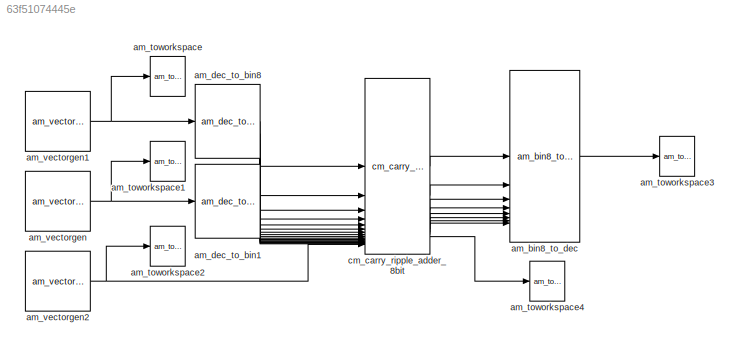
MODEL slx_63f51074445e
KIND model
CONFIG AbsTol = auto
CONFIG EnableMultiTasking = off
CONFIG FixedStep = auto
CONFIG MaxStep = auto
CONFIG MinStep = auto
CONFIG RelTol = 1e-3
CONFIG SampleTimeConstraint = Unconstrained
CONFIG SolverName = VariableStepAuto
CONFIG StartTime = 0.0
CONFIG StopTime = 10.0
BLOCK [Reference] am_bin8_to_dec  REF=NSA_DEVS_DIGITALI3E_CONVERTER/am_bin8_to_dec
  SourceBlock = NSA_DEVS_DIGITALI3E_CONVERTER/am_bin8_to_dec
BLOCK [Reference] am_dec_to_bin1  REF=NSA_DEVS_DIGITALI3E_CONVERTER/am_dec_to_bin8
  SourceBlock = NSA_DEVS_DIGITALI3E_CONVERTER/am_dec_to_bin8
BLOCK [Reference] am_dec_to_bin8  REF=NSA_DEVS_DIGITALI3E_CONVERTER/am_dec_to_bin8
  SourceBlock = NSA_DEVS_DIGITALI3E_CONVERTER/am_dec_to_bin8
BLOCK [Reference] am_toworkspace  REF=NSA_DEVS_SINKS/am_toworkspace
  SourceBlock = NSA_DEVS_SINKS/am_toworkspace
  SourceProductName = Sinks
  SourceType = ToWorkspace
BLOCK [Reference] am_toworkspace1  REF=NSA_DEVS_SINKS/am_toworkspace
  SourceBlock = NSA_DEVS_SINKS/am_toworkspace
  SourceProductName = Sinks
  SourceType = ToWorkspace
BLOCK [Reference] am_toworkspace2  REF=NSA_DEVS_SINKS/am_toworkspace
  SourceBlock = NSA_DEVS_SINKS/am_toworkspace
  SourceProductName = Sinks
  SourceType = ToWorkspace
BLOCK [Reference] am_toworkspace3  REF=NSA_DEVS_SINKS/am_toworkspace
  SourceBlock = NSA_DEVS_SINKS/am_toworkspace
  SourceProductName = Sinks
  SourceType = ToWorkspace
BLOCK [Reference] am_toworkspace4  REF=NSA_DEVS_SINKS/am_toworkspace
  SourceBlock = NSA_DEVS_SINKS/am_toworkspace
  SourceProductName = Sinks
  SourceType = ToWorkspace
BLOCK [Reference] am_vectorgen  REF=NSA_DEVS_SOURCES/am_vectorgen
  SourceBlock = NSA_DEVS_SOURCES/am_vectorgen
  SourceProductName = Sources
  SourceType = Vectorgen
BLOCK [Reference] am_vectorgen1  REF=NSA_DEVS_SOURCES/am_vectorgen
  SourceBlock = NSA_DEVS_SOURCES/am_vectorgen
  SourceProductName = Sources
  SourceType = Vectorgen
BLOCK [Reference] am_vectorgen2  REF=NSA_DEVS_SOURCES/am_vectorgen
  SourceBlock = NSA_DEVS_SOURCES/am_vectorgen
  SourceProductName = Sources
  SourceType = Vectorgen
BLOCK [Reference] cm_carry_ripple_adder_8bit  REF=NSA_DEVS_DIGITALI3E_LOGIC/cm_carry_ripple_adder_8bit
  SourceBlock = NSA_DEVS_DIGITALI3E_LOGIC/cm_carry_ripple_adder_8bit
LINE am_bin8_to_dec:1 -> am_toworkspace3:1
LINE am_dec_to_bin1:1 -> cm_carry_ripple_adder_8bit:9
LINE am_dec_to_bin1:2 -> cm_carry_ripple_adder_8bit:10
LINE am_dec_to_bin1:3 -> cm_carry_ripple_adder_8bit:11
LINE am_dec_to_bin1:4 -> cm_carry_ripple_adder_8bit:12
LINE am_dec_to_bin1:5 -> cm_carry_ripple_adder_8bit:13
LINE am_dec_to_bin1:6 -> cm_carry_ripple_adder_8bit:14
LINE am_dec_to_bin1:7 -> cm_carry_ripple_adder_8bit:15
LINE am_dec_to_bin1:8 -> cm_carry_ripple_adder_8bit:16
LINE am_dec_to_bin8:1 -> cm_carry_ripple_adder_8bit:1
LINE am_dec_to_bin8:2 -> cm_carry_ripple_adder_8bit:2
LINE am_dec_to_bin8:3 -> cm_carry_ripple_adder_8bit:3
LINE am_dec_to_bin8:4 -> cm_carry_ripple_adder_8bit:4
LINE am_dec_to_bin8:5 -> cm_carry_ripple_adder_8bit:5
LINE am_dec_to_bin8:6 -> cm_carry_ripple_adder_8bit:6
LINE am_dec_to_bin8:7 -> cm_carry_ripple_adder_8bit:7
LINE am_dec_to_bin8:8 -> cm_carry_ripple_adder_8bit:8
NET am_vectorgen1:1 -> am_dec_to_bin8:1, am_toworkspace:1
NET am_vectorgen2:1 -> am_toworkspace2:1, cm_carry_ripple_adder_8bit:17
NET am_vectorgen:1 -> am_dec_to_bin1:1, am_toworkspace1:1
LINE cm_carry_ripple_adder_8bit:1 -> am_bin8_to_dec:1
LINE cm_carry_ripple_adder_8bit:2 -> am_bin8_to_dec:2
LINE cm_carry_ripple_adder_8bit:3 -> am_bin8_to_dec:3
LINE cm_carry_ripple_adder_8bit:4 -> am_bin8_to_dec:4
LINE cm_carry_ripple_adder_8bit:5 -> am_bin8_to_dec:5
LINE cm_carry_ripple_adder_8bit:6 -> am_bin8_to_dec:6
LINE cm_carry_ripple_adder_8bit:7 -> am_bin8_to_dec:7
LINE cm_carry_ripple_adder_8bit:8 -> am_bin8_to_dec:8
LINE cm_carry_ripple_adder_8bit:9 -> am_toworkspace4:1
note: NET lines group one-source signal fan-out (src -> all destinations, sorted); 1:1 wires keep LINE
